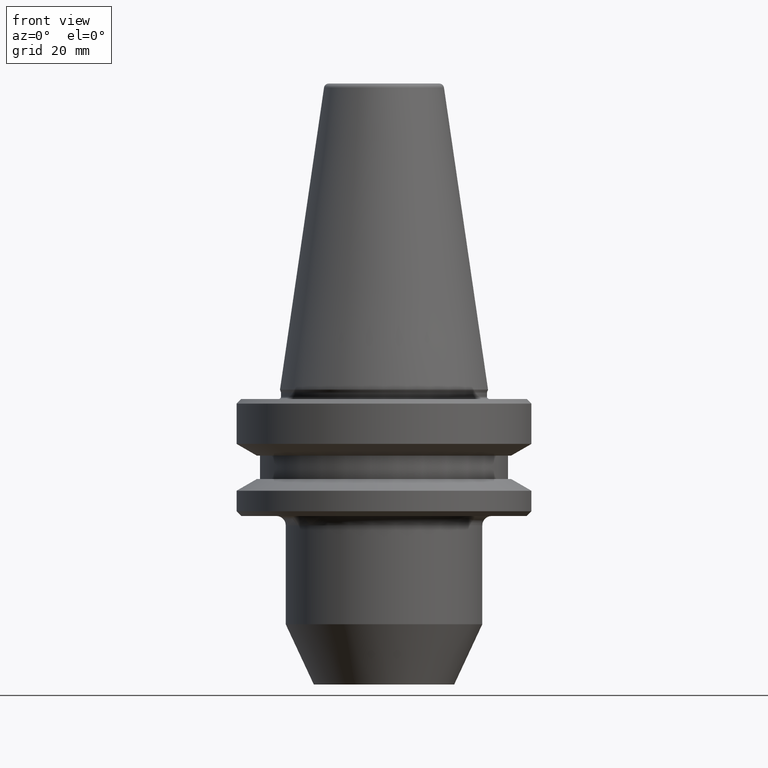
[diagram: clean part render]
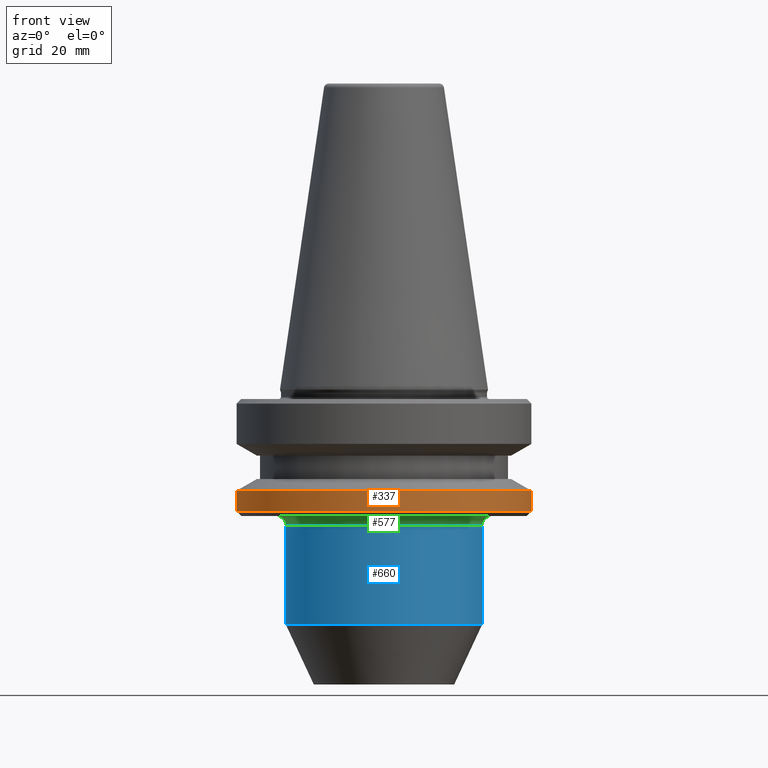
[diagram: same view with three faces highlighted in distinct colors, each labeled with its STEP entity id]
A machine part, front view with three faces highlighted in distinct colors.
Their STEP definitions:

[orange] entity #337 — the highlighted cylindrical surface (partial cylindrical patch) has radius 31.5 mm, axis along (-0, -0, 1).
#2 = ORIENTED_EDGE ( 'NONE', *, *, #79, .T. ) ;
#26 = AXIS2_PLACEMENT_3D ( 'NONE', #143, #334, #139 ) ;
#40 = ORIENTED_EDGE ( 'NONE', *, *, #496, .T. ) ;
#55 = VECTOR ( 'NONE', #147, 1000.000000000000000 ) ;
#58 = CARTESIAN_POINT ( 'NONE',  ( 31.50000000000030600, 0.0000000000000000000, -21.60014200642035200 ) ) ;
#79 = EDGE_CURVE ( 'NONE', #429, #241, #313, .T. ) ;
#93 = CYLINDRICAL_SURFACE ( 'NONE', #26, 31.50000000000030600 ) ;
#139 = DIRECTION ( 'NONE',  ( 1.000000000000000000, 0.0000000000000000000, 0.0000000000000000000 ) ) ;
#143 = CARTESIAN_POINT ( 'NONE',  ( 0.0000000000000000000, 0.0000000000000000000, 108.5744106306333100 ) ) ;
#147 = DIRECTION ( 'NONE',  ( -0.0000000000000000000, -0.0000000000000000000, 1.000000000000000000 ) ) ;
#175 = CARTESIAN_POINT ( 'NONE',  ( 0.0000000000000000000, 0.0000000000000000000, -21.60014200642035200 ) ) ;
#241 = VERTEX_POINT ( 'NONE', #365 ) ;
#242 = VERTEX_POINT ( 'NONE', #262 ) ;
#257 = CARTESIAN_POINT ( 'NONE',  ( 31.50000000000030600, 0.0000000000000000000, 108.5744106306333100 ) ) ;
#262 = CARTESIAN_POINT ( 'NONE',  ( -31.50000000000030600, 3.857637417314200600E-015, -21.60014200642035200 ) ) ;
#279 = AXIS2_PLACEMENT_3D ( 'NONE', #663, #580, #281 ) ;
#281 = DIRECTION ( 'NONE',  ( 1.000000000000000000, 0.0000000000000000000, 0.0000000000000000000 ) ) ;
#313 = CIRCLE ( 'NONE', #279, 31.50000000000030600 ) ;
#334 = DIRECTION ( 'NONE',  ( -0.0000000000000000000, -0.0000000000000000000, 1.000000000000000000 ) ) ;
#337 = ADVANCED_FACE ( 'NONE', ( #546 ), #93, .T. ) ;
#365 = CARTESIAN_POINT ( 'NONE',  ( 31.50000000000030600, 0.0000000000000000000, -26.00000000010321700 ) ) ;
#387 = LINE ( 'NONE', #257, #606 ) ;
#429 = VERTEX_POINT ( 'NONE', #768 ) ;
#437 = DIRECTION ( 'NONE',  ( 1.000000000000000000, 0.0000000000000000000, 0.0000000000000000000 ) ) ;
#454 = AXIS2_PLACEMENT_3D ( 'NONE', #175, #652, #437 ) ;
#496 = EDGE_CURVE ( 'NONE', #241, #1018, #387, .T. ) ;
#529 = DIRECTION ( 'NONE',  ( -0.0000000000000000000, -0.0000000000000000000, 1.000000000000000000 ) ) ;
#543 = ORIENTED_EDGE ( 'NONE', *, *, #966, .F. ) ;
#546 = FACE_OUTER_BOUND ( 'NONE', #555, .T. ) ;
#555 = EDGE_LOOP ( 'NONE', ( #667, #2, #40, #543 ) ) ;
#580 = DIRECTION ( 'NONE',  ( -0.0000000000000000000, -0.0000000000000000000, 1.000000000000000000 ) ) ;
#606 = VECTOR ( 'NONE', #529, 1000.000000000000000 ) ;
#652 = DIRECTION ( 'NONE',  ( -0.0000000000000000000, -0.0000000000000000000, 1.000000000000000000 ) ) ;
#663 = CARTESIAN_POINT ( 'NONE',  ( 0.0000000000000000000, 0.0000000000000000000, -26.00000000010321700 ) ) ;
#667 = ORIENTED_EDGE ( 'NONE', *, *, #674, .F. ) ;
#674 = EDGE_CURVE ( 'NONE', #429, #242, #941, .T. ) ;
#768 = CARTESIAN_POINT ( 'NONE',  ( -31.50000000000030600, 3.857637417314200600E-015, -26.00000000010321700 ) ) ;
#846 = CIRCLE ( 'NONE', #454, 31.50000000000030600 ) ;
#941 = LINE ( 'NONE', #998, #55 ) ;
#966 = EDGE_CURVE ( 'NONE', #242, #1018, #846, .T. ) ;
#998 = CARTESIAN_POINT ( 'NONE',  ( -31.50000000000030600, 3.857637417314200600E-015, 108.5744106306333100 ) ) ;
#1018 = VERTEX_POINT ( 'NONE', #58 ) ;

[blue] entity #660 — the highlighted cylindrical surface (partial cylindrical patch) has radius 21 mm, axis along (-0, -0, 1).
#3 = DIRECTION ( 'NONE',  ( 1.000000000000000000, 0.0000000000000000000, 0.0000000000000000000 ) ) ;
#18 = VECTOR ( 'NONE', #284, 1000.000000000000000 ) ;
#44 = LINE ( 'NONE', #367, #18 ) ;
#146 = DIRECTION ( 'NONE',  ( -0.0000000000000000000, -0.0000000000000000000, 1.000000000000000000 ) ) ;
#172 = CARTESIAN_POINT ( 'NONE',  ( -20.99999999999824100, 2.571758278209226700E-015, -29.00000000010344400 ) ) ;
#203 = DIRECTION ( 'NONE',  ( -0.0000000000000000000, -0.0000000000000000000, 1.000000000000000000 ) ) ;
#249 = ORIENTED_EDGE ( 'NONE', *, *, #679, .T. ) ;
#263 = LINE ( 'NONE', #954, #670 ) ;
#284 = DIRECTION ( 'NONE',  ( -0.0000000000000000000, -0.0000000000000000000, 1.000000000000000000 ) ) ;
#299 = VERTEX_POINT ( 'NONE', #172 ) ;
#308 = DIRECTION ( 'NONE',  ( -0.0000000000000000000, -0.0000000000000000000, 1.000000000000000000 ) ) ;
#357 = DIRECTION ( 'NONE',  ( 1.000000000000000000, 0.0000000000000000000, 0.0000000000000000000 ) ) ;
#367 = CARTESIAN_POINT ( 'NONE',  ( -20.99999999999824100, 2.571758278209226700E-015, 108.5744106306333100 ) ) ;
#386 = VERTEX_POINT ( 'NONE', #774 ) ;
#409 = CARTESIAN_POINT ( 'NONE',  ( 0.0000000000000000000, 0.0000000000000000000, 108.5744106306333100 ) ) ;
#428 = EDGE_CURVE ( 'NONE', #627, #299, #44, .T. ) ;
#439 = EDGE_LOOP ( 'NONE', ( #510, #1030, #249, #531 ) ) ;
#488 = VERTEX_POINT ( 'NONE', #1035 ) ;
#505 = CIRCLE ( 'NONE', #823, 20.99999999999824100 ) ;
#510 = ORIENTED_EDGE ( 'NONE', *, *, #428, .F. ) ;
#531 = ORIENTED_EDGE ( 'NONE', *, *, #662, .F. ) ;
#584 = CARTESIAN_POINT ( 'NONE',  ( 0.0000000000000000000, 0.0000000000000000000, -50.13295847706306300 ) ) ;
#607 = AXIS2_PLACEMENT_3D ( 'NONE', #409, #146, #999 ) ;
#627 = VERTEX_POINT ( 'NONE', #761 ) ;
#632 = DIRECTION ( 'NONE',  ( -0.0000000000000000000, -0.0000000000000000000, 1.000000000000000000 ) ) ;
#641 = CIRCLE ( 'NONE', #722, 20.99999999999824100 ) ;
#660 = ADVANCED_FACE ( 'NONE', ( #914 ), #704, .T. ) ;
#662 = EDGE_CURVE ( 'NONE', #299, #386, #505, .T. ) ;
#670 = VECTOR ( 'NONE', #203, 1000.000000000000000 ) ;
#679 = EDGE_CURVE ( 'NONE', #488, #386, #263, .T. ) ;
#704 = CYLINDRICAL_SURFACE ( 'NONE', #607, 20.99999999999824100 ) ;
#722 = AXIS2_PLACEMENT_3D ( 'NONE', #584, #632, #357 ) ;
#727 = EDGE_CURVE ( 'NONE', #627, #488, #641, .T. ) ;
#761 = CARTESIAN_POINT ( 'NONE',  ( -20.99999999999824100, 2.571758278209226700E-015, -50.13295847706306300 ) ) ;
#774 = CARTESIAN_POINT ( 'NONE',  ( 20.99999999999824100, 0.0000000000000000000, -29.00000000010344400 ) ) ;
#823 = AXIS2_PLACEMENT_3D ( 'NONE', #933, #308, #3 ) ;
#914 = FACE_OUTER_BOUND ( 'NONE', #439, .T. ) ;
#933 = CARTESIAN_POINT ( 'NONE',  ( 0.0000000000000000000, 0.0000000000000000000, -29.00000000010344400 ) ) ;
#954 = CARTESIAN_POINT ( 'NONE',  ( 20.99999999999824100, 0.0000000000000000000, 108.5744106306333100 ) ) ;
#999 = DIRECTION ( 'NONE',  ( 1.000000000000000000, 0.0000000000000000000, 0.0000000000000000000 ) ) ;
#1030 = ORIENTED_EDGE ( 'NONE', *, *, #727, .T. ) ;
#1035 = CARTESIAN_POINT ( 'NONE',  ( 20.99999999999824100, 0.0000000000000000000, -50.13295847706306300 ) ) ;

[green] entity #577 — the highlighted toroidal blend (fillet) surface has major radius 23 mm and minor (blend) radius 2 mm.
#3 = DIRECTION ( 'NONE',  ( 1.000000000000000000, 0.0000000000000000000, 0.0000000000000000000 ) ) ;
#71 = CARTESIAN_POINT ( 'NONE',  ( 0.0000000000000000000, 0.0000000000000000000, -29.00000000010344400 ) ) ;
#117 = CARTESIAN_POINT ( 'NONE',  ( 22.99999999999824500, 0.0000000000000000000, -27.00000000010344100 ) ) ;
#124 = EDGE_CURVE ( 'NONE', #554, #805, #915, .T. ) ;
#131 = TOROIDAL_SURFACE ( 'NONE', #283, 22.99999999999824500, 2.000000000000001800 ) ;
#172 = CARTESIAN_POINT ( 'NONE',  ( -20.99999999999824100, 2.571758278209226700E-015, -29.00000000010344400 ) ) ;
#190 = CARTESIAN_POINT ( 'NONE',  ( 0.0000000000000000000, 0.0000000000000000000, -27.00000000010344100 ) ) ;
#280 = AXIS2_PLACEMENT_3D ( 'NONE', #777, #597, #689 ) ;
#283 = AXIS2_PLACEMENT_3D ( 'NONE', #71, #1011, #638 ) ;
#299 = VERTEX_POINT ( 'NONE', #172 ) ;
#308 = DIRECTION ( 'NONE',  ( -0.0000000000000000000, -0.0000000000000000000, 1.000000000000000000 ) ) ;
#309 = AXIS2_PLACEMENT_3D ( 'NONE', #729, #572, #764 ) ;
#316 = ORIENTED_EDGE ( 'NONE', *, *, #812, .T. ) ;
#359 = CARTESIAN_POINT ( 'NONE',  ( -22.99999999999824500, 2.816687638038697400E-015, -27.00000000010344100 ) ) ;
#378 = DIRECTION ( 'NONE',  ( 1.000000000000000000, 0.0000000000000000000, 0.0000000000000000000 ) ) ;
#386 = VERTEX_POINT ( 'NONE', #774 ) ;
#469 = CIRCLE ( 'NONE', #280, 2.000000000000001800 ) ;
#472 = AXIS2_PLACEMENT_3D ( 'NONE', #190, #962, #378 ) ;
#479 = ORIENTED_EDGE ( 'NONE', *, *, #907, .F. ) ;
#505 = CIRCLE ( 'NONE', #823, 20.99999999999824100 ) ;
#554 = VERTEX_POINT ( 'NONE', #359 ) ;
#572 = DIRECTION ( 'NONE',  ( 1.224646799147353200E-016, 1.000000000000000000, 0.0000000000000000000 ) ) ;
#577 = ADVANCED_FACE ( 'NONE', ( #965 ), #131, .F. ) ;
#590 = ORIENTED_EDGE ( 'NONE', *, *, #662, .T. ) ;
#597 = DIRECTION ( 'NONE',  ( 0.0000000000000000000, -1.000000000000000000, 0.0000000000000000000 ) ) ;
#617 = EDGE_LOOP ( 'NONE', ( #875, #316, #590, #479 ) ) ;
#638 = DIRECTION ( 'NONE',  ( 1.000000000000000000, 0.0000000000000000000, 0.0000000000000000000 ) ) ;
#662 = EDGE_CURVE ( 'NONE', #299, #386, #505, .T. ) ;
#689 = DIRECTION ( 'NONE',  ( 0.0000000000000000000, 0.0000000000000000000, -1.000000000000000000 ) ) ;
#729 = CARTESIAN_POINT ( 'NONE',  ( -22.99999999999824500, 2.816687638038697400E-015, -29.00000000010344400 ) ) ;
#764 = DIRECTION ( 'NONE',  ( -1.000000000000000000, 1.224646799147353500E-016, 0.0000000000000000000 ) ) ;
#774 = CARTESIAN_POINT ( 'NONE',  ( 20.99999999999824100, 0.0000000000000000000, -29.00000000010344400 ) ) ;
#777 = CARTESIAN_POINT ( 'NONE',  ( 22.99999999999824500, 0.0000000000000000000, -29.00000000010344400 ) ) ;
#805 = VERTEX_POINT ( 'NONE', #117 ) ;
#812 = EDGE_CURVE ( 'NONE', #554, #299, #979, .T. ) ;
#823 = AXIS2_PLACEMENT_3D ( 'NONE', #933, #308, #3 ) ;
#875 = ORIENTED_EDGE ( 'NONE', *, *, #124, .F. ) ;
#907 = EDGE_CURVE ( 'NONE', #805, #386, #469, .T. ) ;
#915 = CIRCLE ( 'NONE', #472, 22.99999999999824500 ) ;
#933 = CARTESIAN_POINT ( 'NONE',  ( 0.0000000000000000000, 0.0000000000000000000, -29.00000000010344400 ) ) ;
#962 = DIRECTION ( 'NONE',  ( -0.0000000000000000000, -0.0000000000000000000, 1.000000000000000000 ) ) ;
#965 = FACE_OUTER_BOUND ( 'NONE', #617, .T. ) ;
#979 = CIRCLE ( 'NONE', #309, 2.000000000000001800 ) ;
#1011 = DIRECTION ( 'NONE',  ( -0.0000000000000000000, -0.0000000000000000000, 1.000000000000000000 ) ) ;